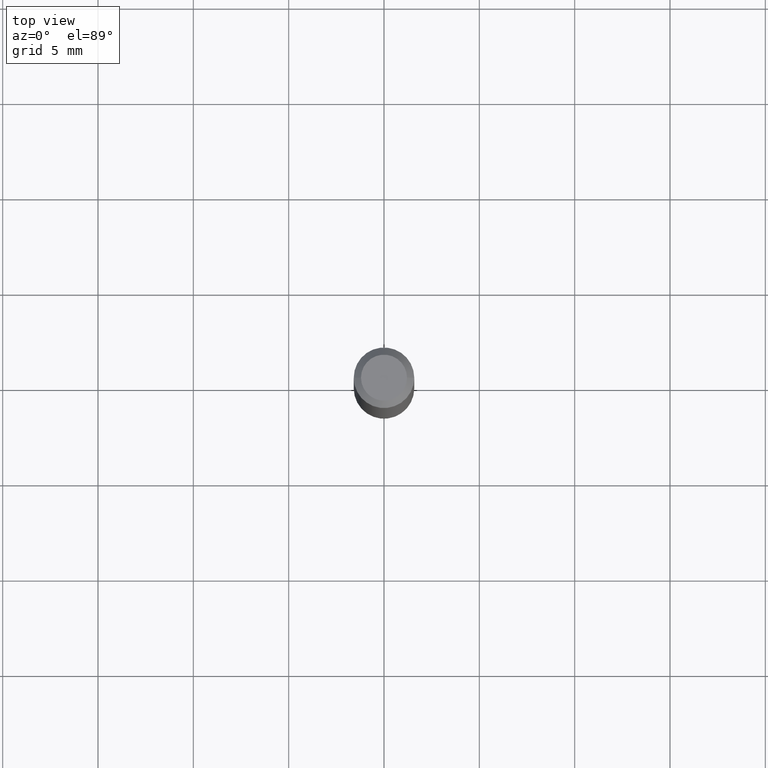
[diagram: clean part render]
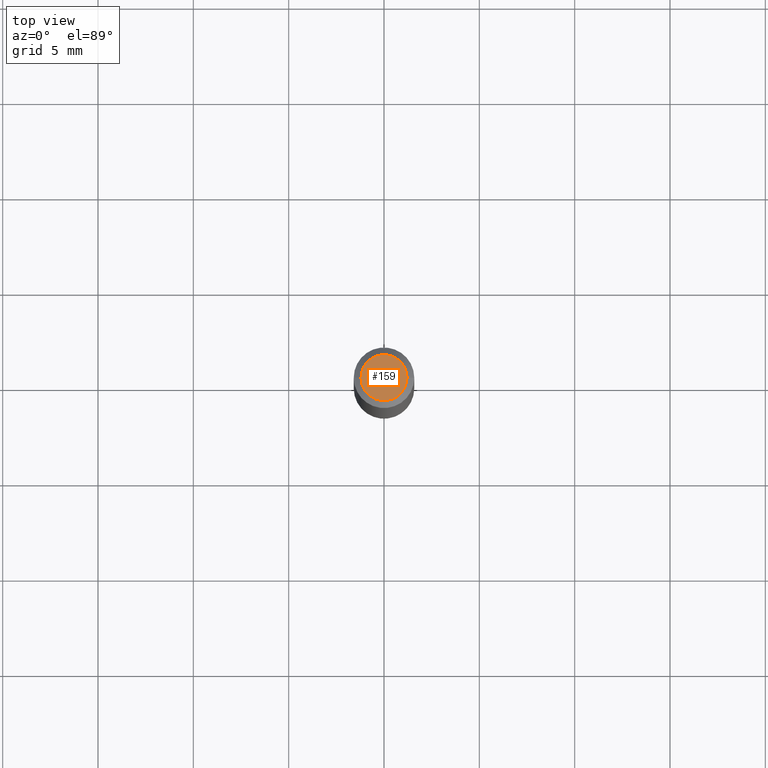
[diagram: same view with one face highlighted and labeled with its STEP entity id]
A machine part, top view. The second image highlights one B-rep face of the part: STEP entity #159.
In plain terms, the highlighted planar face has unit normal (0, -0, -1).
Its self-contained STEP definition (entity closure, byte-faithful):
#16 = ORIENTED_EDGE ( 'NONE', *, *, #460, .T. ) ;
#31 = EDGE_LOOP ( 'NONE', ( #16, #143 ) ) ;
#39 = CARTESIAN_POINT ( 'NONE',  ( 3.316907271900976096E-16, 0.04749999999999999362, -4.396022119312973841E-16 ) ) ;
#74 = PLANE ( 'NONE',  #362 ) ;
#88 = CARTESIAN_POINT ( 'NONE',  ( 1.338927666171699620E-44, -1.911633854693045944E-30, -5.475136966724958768E-16 ) ) ;
#130 = DIRECTION ( 'NONE',  ( -2.445468806185136597E-29, 3.491481338843145583E-15, 1.000000000000000000 ) ) ;
#143 = ORIENTED_EDGE ( 'NONE', *, *, #217, .T. ) ;
#159 = ADVANCED_FACE ( 'NONE', ( #404 ), #74, .F. ) ;
#168 = AXIS2_PLACEMENT_3D ( 'NONE', #88, #130, #281 ) ;
#217 = EDGE_CURVE ( 'NONE', #384, #431, #445, .T. ) ;
#226 = AXIS2_PLACEMENT_3D ( 'NONE', #403, #296, #332 ) ;
#228 = DIRECTION ( 'NONE',  ( -1.000000000000000000, 6.982962677686265922E-15, -4.876176775795935793E-29 ) ) ;
#230 = DIRECTION ( 'NONE',  ( 2.438088387897960049E-29, -3.491481338843145188E-15, -1.000000000000000000 ) ) ;
#281 = DIRECTION ( 'NONE',  ( 1.000000000000000000, -6.982962677686267499E-15, 4.852736867747366768E-29 ) ) ;
#296 = DIRECTION ( 'NONE',  ( -2.445468806185136597E-29, 3.491481338843145583E-15, 1.000000000000000000 ) ) ;
#332 = DIRECTION ( 'NONE',  ( 1.000000000000000000, -6.982962677686267499E-15, 4.852736867747366768E-29 ) ) ;
#362 = AXIS2_PLACEMENT_3D ( 'NONE', #39, #230, #228 ) ;
#379 = CARTESIAN_POINT ( 'NONE',  ( 0.04749999999999999362, -4.035134999187587991E-16, -5.475136966724933130E-16 ) ) ;
#384 = VERTEX_POINT ( 'NONE', #379 ) ;
#392 = CIRCLE ( 'NONE', #168, 0.04749999999999999362 ) ;
#403 = CARTESIAN_POINT ( 'NONE',  ( 1.338927666171699620E-44, -1.911633854693045944E-30, -5.475136966724958768E-16 ) ) ;
#404 = FACE_OUTER_BOUND ( 'NONE', #31, .T. ) ;
#431 = VERTEX_POINT ( 'NONE', #449 ) ;
#445 = CIRCLE ( 'NONE', #226, 0.04749999999999999362 ) ;
#449 = CARTESIAN_POINT ( 'NONE',  ( -0.04749999999999999362, 3.578768372314200645E-16, -5.475136966724983420E-16 ) ) ;
#460 = EDGE_CURVE ( 'NONE', #431, #384, #392, .T. ) ;